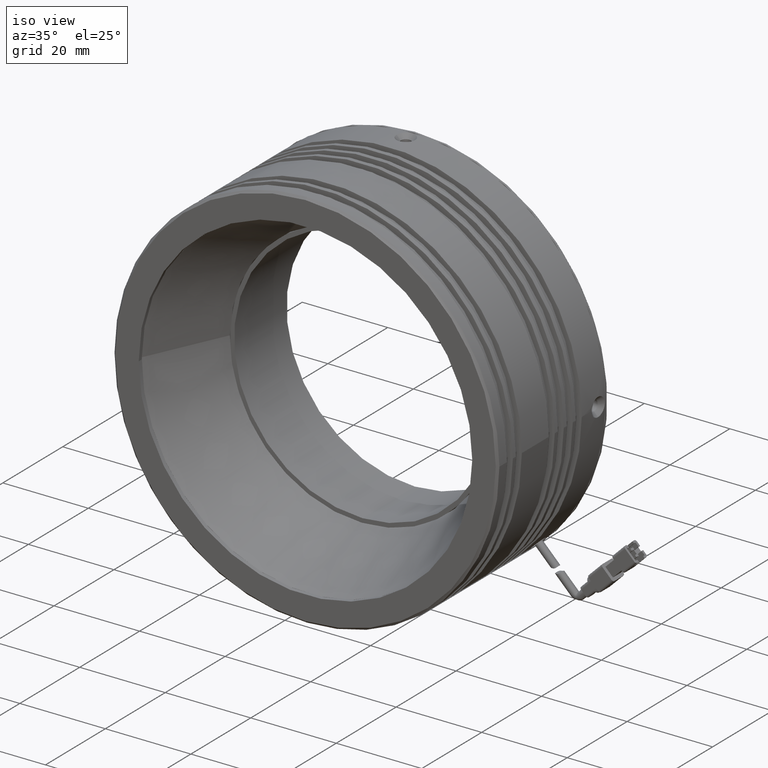
[diagram: clean part render]
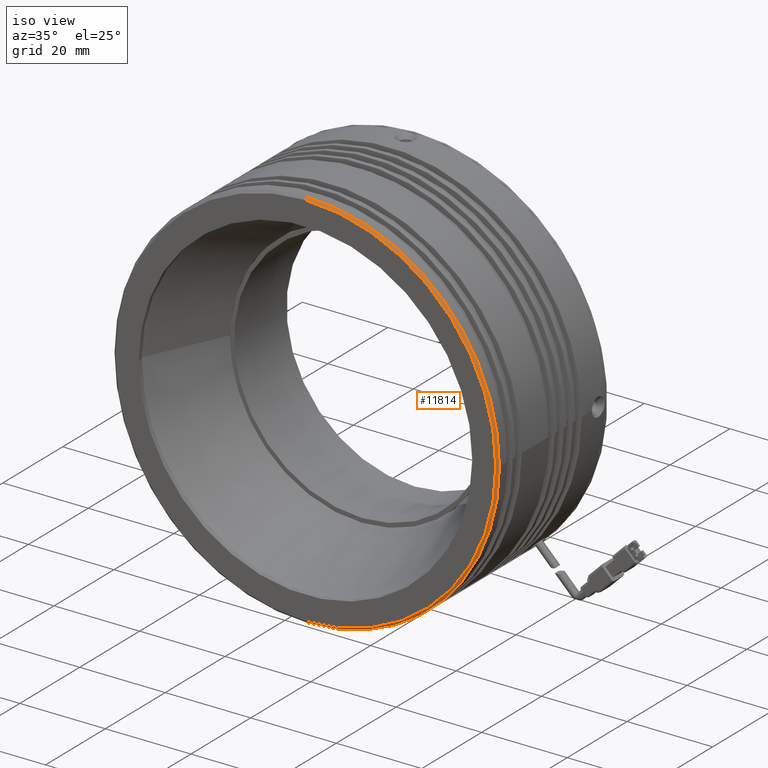
[diagram: same view with one face highlighted and labeled with its STEP entity id]
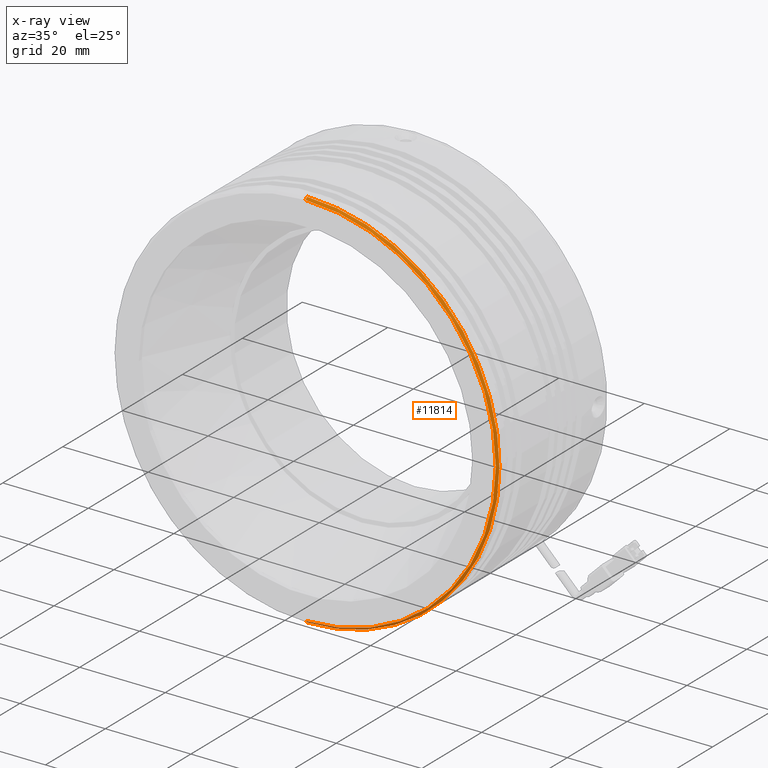
[diagram: x-ray of the same camera — body ghosted, the highlighted face saturated]
A machine part, iso view. The second image highlights one B-rep face of the part: STEP entity #11814.
The next image is the same camera in x-ray: the body ghosted, the highlighted face saturated — about 0% of this face is hidden behind the body in this view.
In plain terms, the highlighted conical surface has half-angle 45 deg.
Its self-contained STEP definition (entity closure, byte-faithful):
#85 = EDGE_CURVE ( 'NONE', #9344, #2384, #9069, .T. ) ;
#1018 = ORIENTED_EDGE ( 'NONE', *, *, #5440, .T. ) ;
#1378 = EDGE_CURVE ( 'NONE', #12107, #2384, #3843, .T. ) ;
#1602 = VERTEX_POINT ( 'NONE', #5226 ) ;
#2177 = DIRECTION ( 'NONE',  ( 3.980255218400286300E-031, 1.000000000000000000, -3.854941057726237900E-017 ) ) ;
#2256 = CARTESIAN_POINT ( 'NONE',  ( 31.64446447695874900, -22.13393662020660800, 4.718366345757614500E-013 ) ) ;
#2384 = VERTEX_POINT ( 'NONE', #8372 ) ;
#2422 = DIRECTION ( 'NONE',  ( 3.980255218400286300E-031, 1.000000000000000000, -3.854941057726237900E-017 ) ) ;
#2617 = CARTESIAN_POINT ( 'NONE',  ( -13.35553552304077700, -22.13393662020660800, -44.99999999999997900 ) ) ;
#2705 = CARTESIAN_POINT ( 'NONE',  ( -13.35553552304170700, -22.63393662020662900, 44.49999999999997900 ) ) ;
#3260 = CIRCLE ( 'NONE', #11830, 44.49999999999996400 ) ;
#3531 = VECTOR ( 'NONE', #6434, 1000.000000000000000 ) ;
#3843 = LINE ( 'NONE', #8680, #3531 ) ;
#4270 = CONICAL_SURFACE ( 'NONE', #5875, 45.00000000000000000, 0.7853981633974587200 ) ;
#4278 = ORIENTED_EDGE ( 'NONE', *, *, #85, .T. ) ;
#4527 = EDGE_CURVE ( 'NONE', #1602, #8819, #5779, .T. ) ;
#4734 = EDGE_LOOP ( 'NONE', ( #11061, #5488, #1018, #4278, #8792 ) ) ;
#5226 = CARTESIAN_POINT ( 'NONE',  ( -13.35553552304077800, -22.63393662020662900, -44.49999999999995000 ) ) ;
#5440 = EDGE_CURVE ( 'NONE', #8819, #9344, #9093, .T. ) ;
#5488 = ORIENTED_EDGE ( 'NONE', *, *, #4527, .T. ) ;
#5553 = CARTESIAN_POINT ( 'NONE',  ( -13.35553552304124700, -22.13393662020660800, 1.271920936629652900E-014 ) ) ;
#5779 = LINE ( 'NONE', #6533, #10396 ) ;
#5875 = AXIS2_PLACEMENT_3D ( 'NONE', #7741, #2177, #5936 ) ;
#5936 = DIRECTION ( 'NONE',  ( -1.033124203470631800E-014, 0.0000000000000000000, 1.000000000000000000 ) ) ;
#6434 = DIRECTION ( 'NONE',  ( -7.300929932879628800E-015, 0.7071067811865401300, 0.7071067811865549000 ) ) ;
#6490 = DIRECTION ( 'NONE',  ( 1.000000000000000000, 7.709882115452475700E-017, 1.121325254871408100E-014 ) ) ;
#6533 = CARTESIAN_POINT ( 'NONE',  ( -13.35553552304077700, -22.13393662020660500, -44.99999999999998600 ) ) ;
#7741 = CARTESIAN_POINT ( 'NONE',  ( -13.35553552304124700, -22.13393662020660500, 1.271920936629652900E-014 ) ) ;
#7899 = FACE_OUTER_BOUND ( 'NONE', #4734, .T. ) ;
#7919 = AXIS2_PLACEMENT_3D ( 'NONE', #5553, #12044, #6490 ) ;
#7991 = CARTESIAN_POINT ( 'NONE',  ( -13.35553552304124700, -22.63393662020662900, 1.273848407158516200E-014 ) ) ;
#8372 = CARTESIAN_POINT ( 'NONE',  ( -13.35553552304171300, -22.13393662020660800, 45.00000000000000700 ) ) ;
#8680 = CARTESIAN_POINT ( 'NONE',  ( -13.35553552304171300, -22.13393662020660500, 45.00000000000001400 ) ) ;
#8792 = ORIENTED_EDGE ( 'NONE', *, *, #1378, .F. ) ;
#8819 = VERTEX_POINT ( 'NONE', #2617 ) ;
#8865 = EDGE_CURVE ( 'NONE', #12107, #1602, #3260, .T. ) ;
#8915 = DIRECTION ( 'NONE',  ( -1.033037575581694900E-014, 0.0000000000000000000, 1.000000000000000000 ) ) ;
#9013 = AXIS2_PLACEMENT_3D ( 'NONE', #11943, #11991, #12034 ) ;
#9069 = CIRCLE ( 'NONE', #9013, 45.00000000000000000 ) ;
#9093 = CIRCLE ( 'NONE', #7919, 45.00000000000000000 ) ;
#9344 = VERTEX_POINT ( 'NONE', #2256 ) ;
#10233 = DIRECTION ( 'NONE',  ( 7.387525538503180200E-015, 0.7071067811865401300, -0.7071067811865549000 ) ) ;
#10396 = VECTOR ( 'NONE', #10233, 1000.000000000000000 ) ;
#11061 = ORIENTED_EDGE ( 'NONE', *, *, #8865, .T. ) ;
#11814 = ADVANCED_FACE ( 'NONE', ( #7899 ), #4270, .T. ) ;
#11830 = AXIS2_PLACEMENT_3D ( 'NONE', #7991, #2422, #8915 ) ;
#11943 = CARTESIAN_POINT ( 'NONE',  ( -13.35553552304124700, -22.13393662020660800, 1.271920936629652900E-014 ) ) ;
#11991 = DIRECTION ( 'NONE',  ( -0.0000000000000000000, -1.000000000000000000, -0.0000000000000000000 ) ) ;
#12034 = DIRECTION ( 'NONE',  ( 1.000000000000000000, 7.709882115452475700E-017, 1.032507412901395400E-014 ) ) ;
#12044 = DIRECTION ( 'NONE',  ( -0.0000000000000000000, -1.000000000000000000, -0.0000000000000000000 ) ) ;
#12107 = VERTEX_POINT ( 'NONE', #2705 ) ;